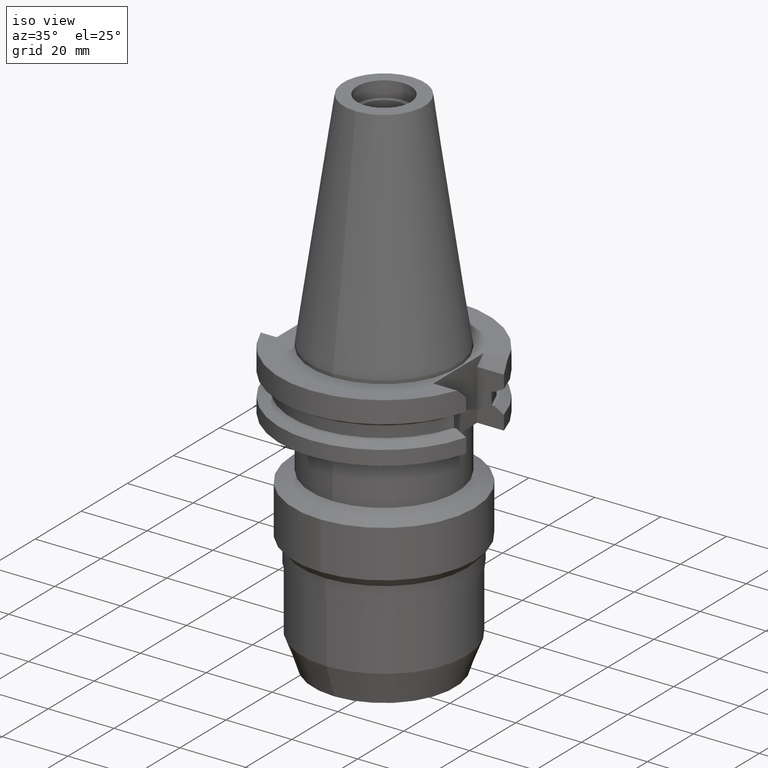
[diagram: clean part render]
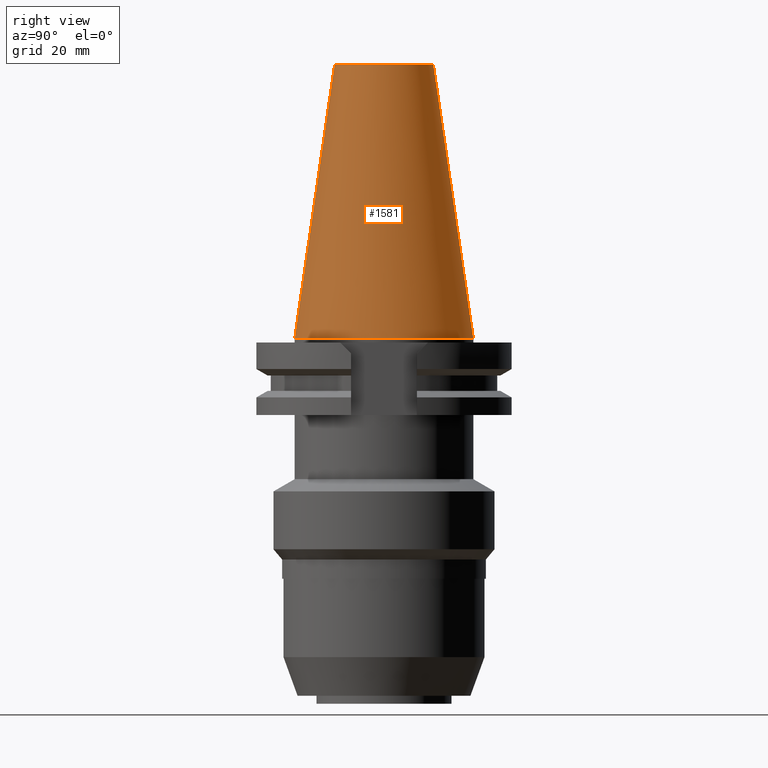
[diagram: tour spotlight — one face highlighted and labeled with its STEP entity id]
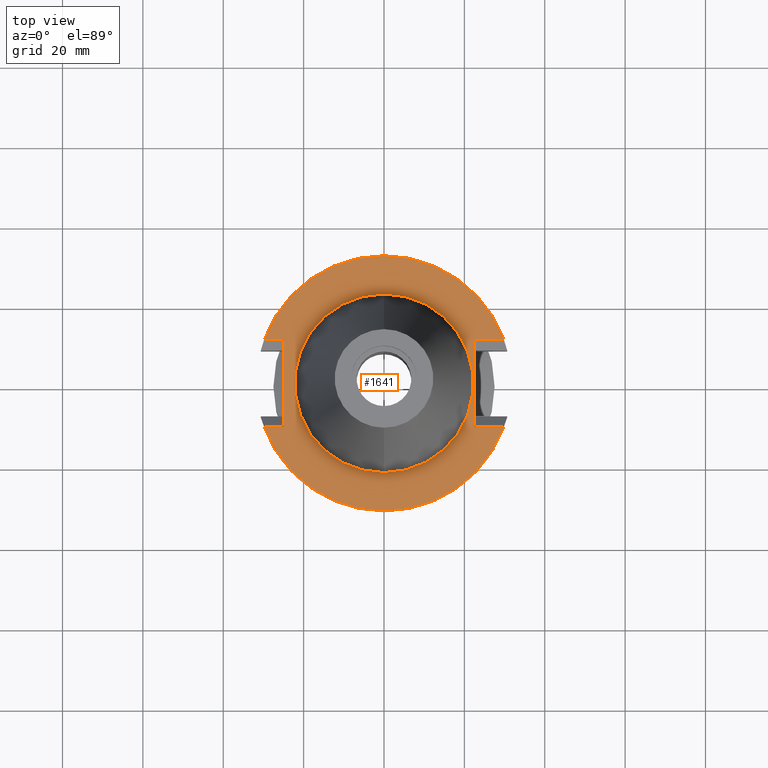
[diagram: tour spotlight — one face highlighted and labeled with its STEP entity id]
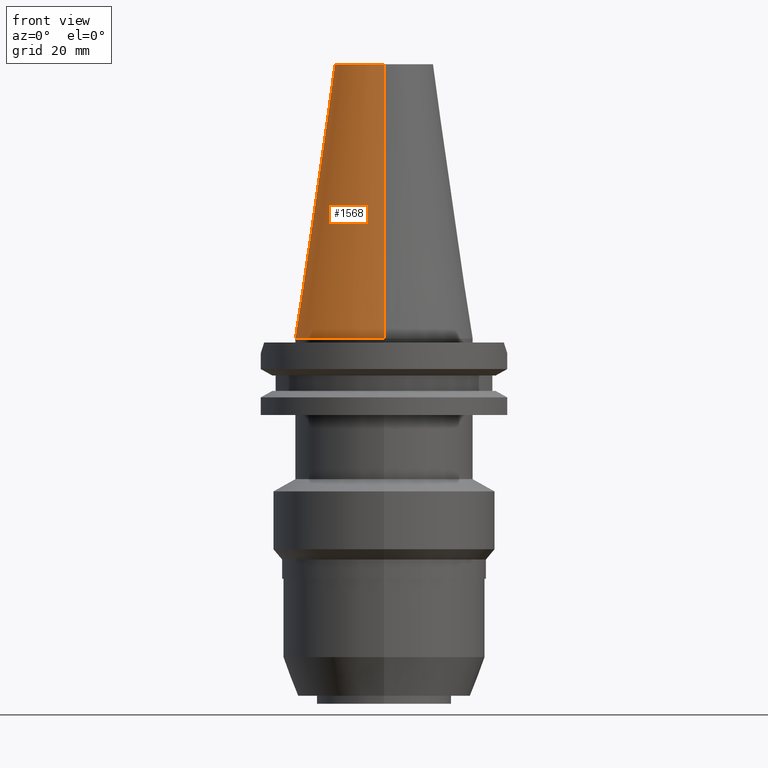
[diagram: tour spotlight — one face highlighted and labeled with its STEP entity id]
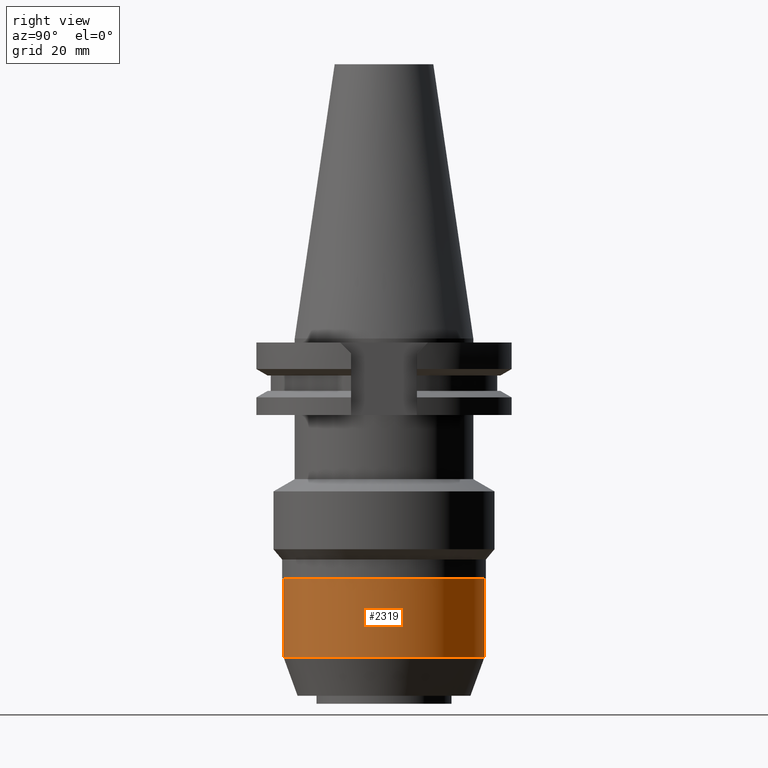
[diagram: tour spotlight — one face highlighted and labeled with its STEP entity id]
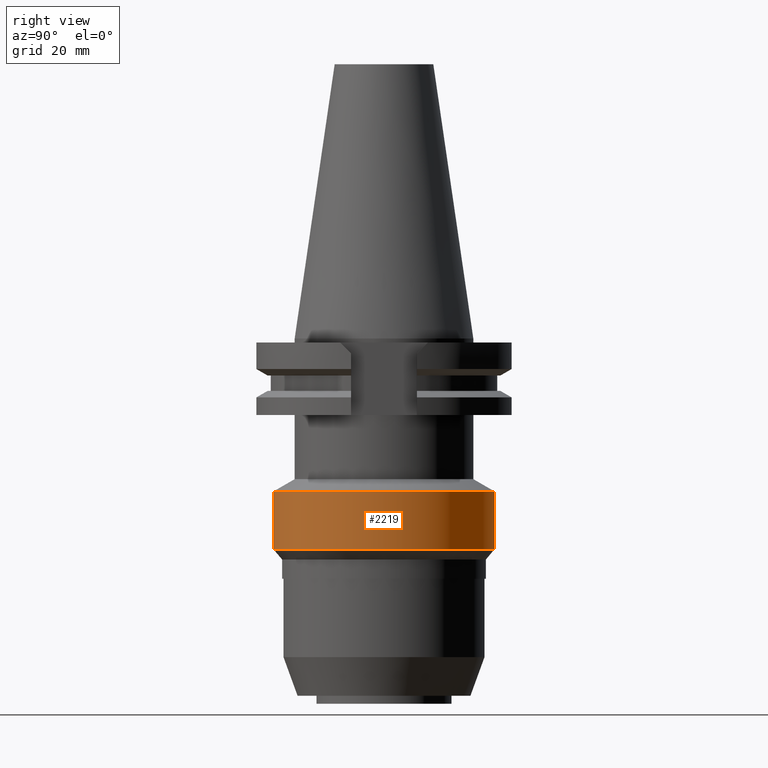
[diagram: tour spotlight — one face highlighted and labeled with its STEP entity id]
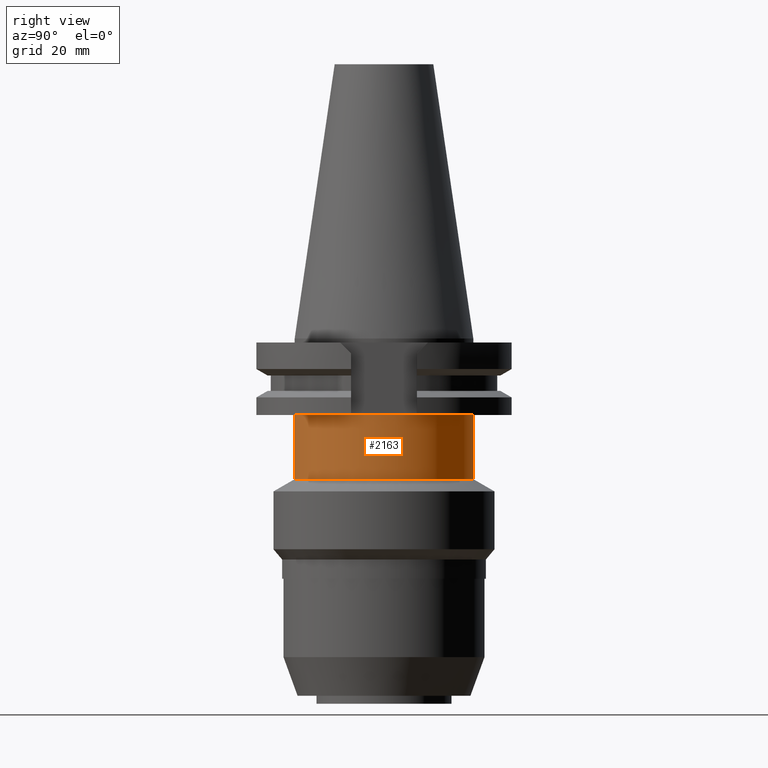
[diagram: tour spotlight — one face highlighted and labeled with its STEP entity id]
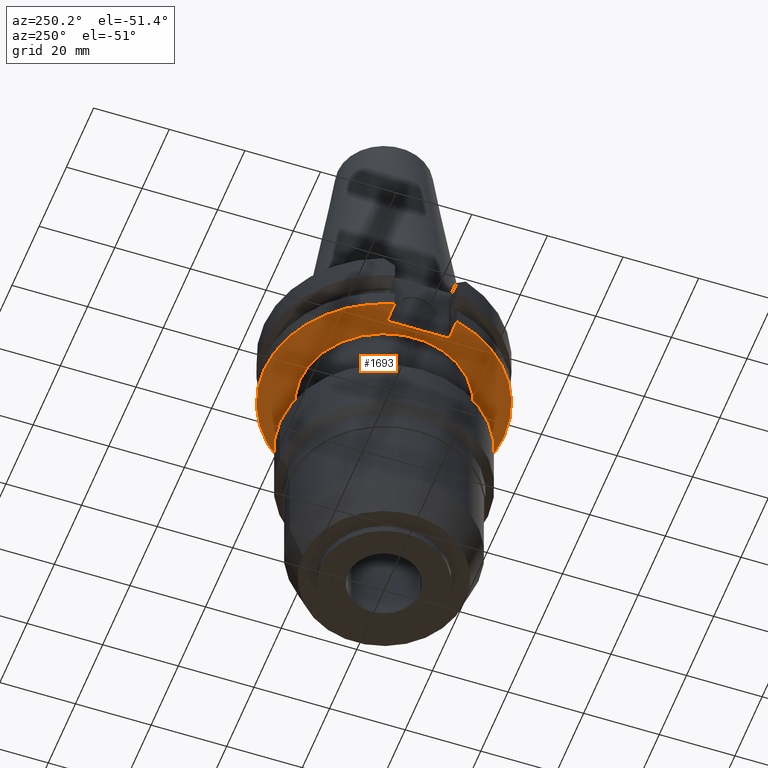
[diagram: tour spotlight — one face highlighted and labeled with its STEP entity id]
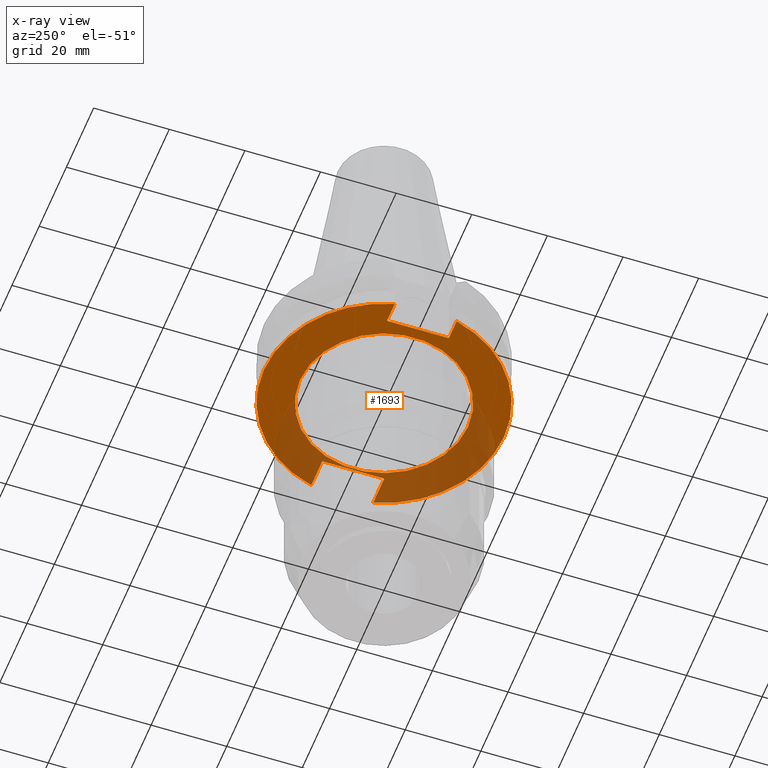
[diagram: x-ray of the same camera — body ghosted, this tour face saturated]
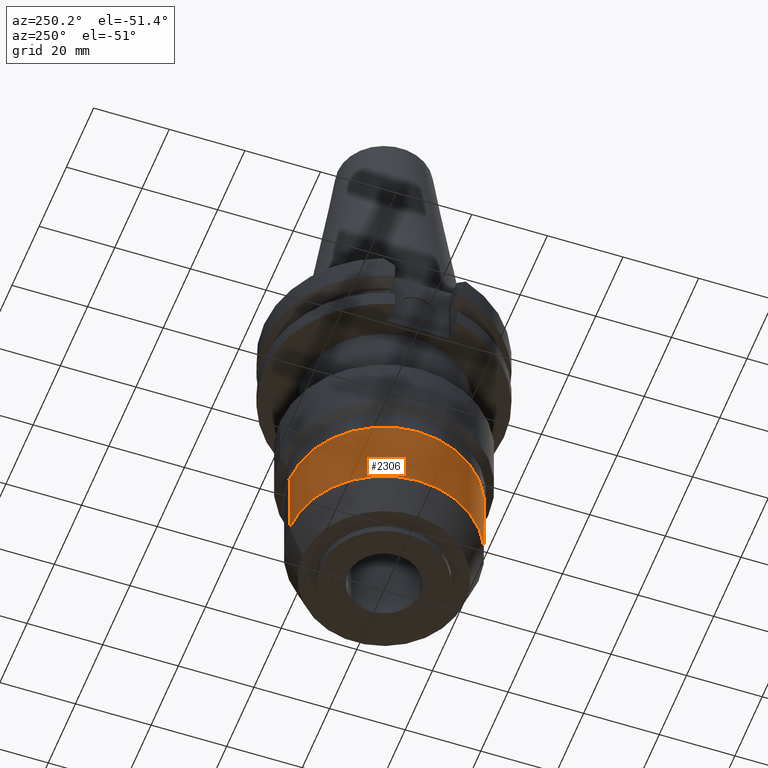
[diagram: tour spotlight — one face highlighted and labeled with its STEP entity id]
A machine part: a face-by-face anatomy tour. The part has 66 B-rep faces; the first image is the clean iso view, then the 8 largest visible faces are spotlighted one at a time (largest first), each with its STEP entity span.

Face 1 — right view, entity #1581. In plain terms, the highlighted conical surface has half-angle 8.297 deg.
Definition (entity closure, byte-faithful):
#26=CARTESIAN_POINT('',(0.E0,1.642557519356E-14,6.825E1));
#27=DIRECTION('',(0.E0,0.E0,-1.E0));
#28=DIRECTION('',(0.E0,1.E0,0.E0));
#29=AXIS2_PLACEMENT_3D('',#26,#27,#28);
#50=DIRECTION('',(0.E0,-1.443069799457E-1,-9.895329683942E-1));
#51=VECTOR('',#50,6.897193138573E1);
#52=CARTESIAN_POINT('',(0.E0,-1.227186888070E1,6.825E1));
#53=LINE('',#52,#51);
#65=DIRECTION('',(0.E0,1.443069799457E-1,-9.895329683942E-1));
#66=VECTOR('',#65,6.897193138573E1);
#67=CARTESIAN_POINT('',(0.E0,1.227186888070E1,6.825E1));
#68=LINE('',#67,#66);
#72=CARTESIAN_POINT('',(0.E0,1.642557519356E-14,-3.126388037344E-13));
#73=DIRECTION('',(0.E0,0.E0,-1.E0));
#74=DIRECTION('',(0.E0,1.E0,0.E0));
#75=AXIS2_PLACEMENT_3D('',#72,#73,#74);
#1318=CARTESIAN_POINT('',(0.E0,-1.227186888070E1,6.825E1));
#1319=CARTESIAN_POINT('',(0.E0,1.227186888070E1,6.825E1));
#1320=VERTEX_POINT('',#1318);
#1321=VERTEX_POINT('',#1319);
#1528=CARTESIAN_POINT('',(0.E0,2.2225E1,-1.705302565824E-13));
#1529=VERTEX_POINT('',#1528);
#1530=CARTESIAN_POINT('',(0.E0,-2.2225E1,-1.705302565824E-13));
#1531=VERTEX_POINT('',#1530);
#1569=CARTESIAN_POINT('',(0.E0,1.642557519356E-14,3.4125E1));
#1570=DIRECTION('',(0.E0,0.E0,-1.E0));
#1571=DIRECTION('',(0.E0,-1.E0,0.E0));
#1572=AXIS2_PLACEMENT_3D('',#1569,#1570,#1571);
#1573=CONICAL_SURFACE('',#1572,1.724843444035E1,8.29715E0);
#1574=ORIENTED_EDGE('',*,*,#1559,.T.);
#1576=ORIENTED_EDGE('',*,*,#1575,.T.);
#1577=ORIENTED_EDGE('',*,*,#1562,.F.);
#1578=ORIENTED_EDGE('',*,*,#1543,.F.);
#1579=EDGE_LOOP('',(#1574,#1576,#1577,#1578));
#1580=FACE_OUTER_BOUND('',#1579,.F.);
#30=CIRCLE('',#29,1.227186888070E1);
#76=CIRCLE('',#75,2.2225E1);
#1543=EDGE_CURVE('',#1321,#1320,#30,.T.);
#1559=EDGE_CURVE('',#1321,#1529,#68,.T.);
#1562=EDGE_CURVE('',#1320,#1531,#53,.T.);
#1575=EDGE_CURVE('',#1529,#1531,#76,.T.);
#1581=ADVANCED_FACE('',(#1580),#1573,.T.);

Face 2 — top view, entity #1641. In plain terms, the highlighted planar face has unit normal (0, 0, -1).
Definition (entity closure, byte-faithful):
#94=DIRECTION('',(0.E0,-1.E0,0.E0));
#95=VECTOR('',#94,2.178E1);
#96=CARTESIAN_POINT('',(2.257E1,1.089E1,-1.E0));
#97=LINE('',#96,#95);
#101=DIRECTION('',(1.E0,5.877118954908E-14,0.E0));
#102=VECTOR('',#101,7.253990343347E0);
#103=CARTESIAN_POINT('',(2.257E1,-1.089E1,-1.E0));
#104=LINE('',#103,#102);
#108=CARTESIAN_POINT('',(0.E0,2.157919508608E-14,-1.E0));
#109=DIRECTION('',(0.E0,0.E0,-1.E0));
#110=DIRECTION('',(9.393382785306E-1,-3.429921259843E-1,0.E0));
#111=AXIS2_PLACEMENT_3D('',#108,#109,#110);
#116=CARTESIAN_POINT('',(0.E0,2.157919508608E-14,-1.E0));
#117=DIRECTION('',(0.E0,0.E0,-1.E0));
#118=DIRECTION('',(0.E0,-1.E0,0.E0));
#119=AXIS2_PLACEMENT_3D('',#116,#117,#118);
#124=DIRECTION('',(-1.E0,-8.727782216946E-14,0.E0));
#125=VECTOR('',#124,4.843990343348E0);
#126=CARTESIAN_POINT('',(-2.498E1,1.089E1,-1.E0));
#127=LINE('',#126,#125);
#131=CARTESIAN_POINT('',(0.E0,2.157919508608E-14,-1.E0));
#132=DIRECTION('',(0.E0,0.E0,-1.E0));
#133=DIRECTION('',(-9.393382785306E-1,3.429921259843E-1,0.E0));
#134=AXIS2_PLACEMENT_3D('',#131,#132,#133);
#139=CARTESIAN_POINT('',(0.E0,2.157919508608E-14,-1.E0));
#140=DIRECTION('',(0.E0,0.E0,-1.E0));
#141=DIRECTION('',(0.E0,1.E0,0.E0));
#142=AXIS2_PLACEMENT_3D('',#139,#140,#141);
#147=CARTESIAN_POINT('',(0.E0,2.157919508608E-14,-1.E0));
#148=DIRECTION('',(0.E0,0.E0,1.E0));
#149=DIRECTION('',(0.E0,-1.E0,0.E0));
#150=AXIS2_PLACEMENT_3D('',#147,#148,#149);
#155=CARTESIAN_POINT('',(0.E0,2.157919508608E-14,-1.E0));
#156=DIRECTION('',(0.E0,0.E0,1.E0));
#157=DIRECTION('',(0.E0,1.E0,0.E0));
#158=AXIS2_PLACEMENT_3D('',#155,#156,#157);
#291=DIRECTION('',(1.E0,-5.779166972326E-14,0.E0));
#292=VECTOR('',#291,7.253990343348E0);
#293=CARTESIAN_POINT('',(2.257E1,1.089E1,-1.E0));
#294=LINE('',#293,#292);
#308=CARTESIAN_POINT('',(2.982399034335E1,1.089E1,-1.000000000001E0));
#335=DIRECTION('',(0.E0,-1.E0,0.E0));
#336=VECTOR('',#335,2.178E1);
#337=CARTESIAN_POINT('',(-2.498E1,1.089E1,-1.E0));
#338=LINE('',#337,#336);
#561=DIRECTION('',(-1.E0,8.727782216946E-14,0.E0));
#562=VECTOR('',#561,4.843990343348E0);
#563=CARTESIAN_POINT('',(-2.498E1,-1.089E1,-1.E0));
#564=LINE('',#563,#562);
#575=CARTESIAN_POINT('',(2.982399034335E1,-1.089E1,-1.000000000001E0));
#600=CARTESIAN_POINT('',(-2.982399034335E1,-1.089E1,-1.000000000001E0));
#1424=CARTESIAN_POINT('',(2.257E1,-1.089E1,-1.E0));
#1425=VERTEX_POINT('',#1424);
#1426=CARTESIAN_POINT('',(2.257E1,1.089E1,-1.E0));
#1427=VERTEX_POINT('',#1426);
#1467=CARTESIAN_POINT('',(-2.498E1,1.089E1,-1.E0));
#1468=VERTEX_POINT('',#1467);
#1469=CARTESIAN_POINT('',(-2.498E1,-1.089E1,-1.E0));
#1470=VERTEX_POINT('',#1469);
#1513=VERTEX_POINT('',#575);
#1514=VERTEX_POINT('',#600);
#1515=CARTESIAN_POINT('',(0.E0,-3.175E1,-1.E0));
#1516=VERTEX_POINT('',#1515);
#1519=VERTEX_POINT('',#308);
#1520=CARTESIAN_POINT('',(0.E0,3.175E1,-1.E0));
#1521=VERTEX_POINT('',#1520);
#1522=CARTESIAN_POINT('',(-2.982399034335E1,1.089E1,-1.E0));
#1523=VERTEX_POINT('',#1522);
#1524=CARTESIAN_POINT('',(0.E0,-2.2225E1,-1.E0));
#1525=CARTESIAN_POINT('',(0.E0,2.2225E1,-1.E0));
#1526=VERTEX_POINT('',#1524);
#1527=VERTEX_POINT('',#1525);
#1610=CARTESIAN_POINT('',(0.E0,1.212400331156E-14,-1.E0));
#1611=DIRECTION('',(0.E0,0.E0,-1.E0));
#1612=DIRECTION('',(0.E0,-1.E0,0.E0));
#1613=AXIS2_PLACEMENT_3D('',#1610,#1611,#1612);
#1614=PLANE('',#1613);
#1616=ORIENTED_EDGE('',*,*,#1615,.T.);
#1618=ORIENTED_EDGE('',*,*,#1617,.T.);
#1620=ORIENTED_EDGE('',*,*,#1619,.T.);
#1622=ORIENTED_EDGE('',*,*,#1621,.T.);
#1624=ORIENTED_EDGE('',*,*,#1623,.F.);
#1626=ORIENTED_EDGE('',*,*,#1625,.F.);
#1628=ORIENTED_EDGE('',*,*,#1627,.T.);
#1630=ORIENTED_EDGE('',*,*,#1629,.T.);
#1632=ORIENTED_EDGE('',*,*,#1631,.T.);
#1634=ORIENTED_EDGE('',*,*,#1633,.F.);
#1635=EDGE_LOOP('',(#1616,#1618,#1620,#1622,#1624,#1626,#1628,#1630,#1632,
#1634));
#1636=FACE_OUTER_BOUND('',#1635,.F.);
#1637=ORIENTED_EDGE('',*,*,#1589,.T.);
#1638=ORIENTED_EDGE('',*,*,#1605,.T.);
#1639=EDGE_LOOP('',(#1637,#1638));
#1640=FACE_BOUND('',#1639,.F.);
#112=CIRCLE('',#111,3.175E1);
#120=CIRCLE('',#119,3.175E1);
#135=CIRCLE('',#134,3.175E1);
#143=CIRCLE('',#142,3.175E1);
#151=CIRCLE('',#150,2.2225E1);
#159=CIRCLE('',#158,2.2225E1);
#1589=EDGE_CURVE('',#1526,#1527,#151,.T.);
#1605=EDGE_CURVE('',#1527,#1526,#159,.T.);
#1615=EDGE_CURVE('',#1427,#1425,#97,.T.);
#1617=EDGE_CURVE('',#1425,#1513,#104,.T.);
#1619=EDGE_CURVE('',#1513,#1516,#112,.T.);
#1621=EDGE_CURVE('',#1516,#1514,#120,.T.);
#1623=EDGE_CURVE('',#1470,#1514,#564,.T.);
#1625=EDGE_CURVE('',#1468,#1470,#338,.T.);
#1627=EDGE_CURVE('',#1468,#1523,#127,.T.);
#1629=EDGE_CURVE('',#1523,#1521,#135,.T.);
#1631=EDGE_CURVE('',#1521,#1519,#143,.T.);
#1633=EDGE_CURVE('',#1427,#1519,#294,.T.);
#1641=ADVANCED_FACE('',(#1636,#1640),#1614,.F.);

Face 3 — front view, entity #1568. In plain terms, the highlighted conical surface has half-angle 8.297 deg.
Definition (entity closure, byte-faithful):
#17=CARTESIAN_POINT('',(0.E0,1.642557519356E-14,6.825E1));
#18=DIRECTION('',(0.E0,0.E0,-1.E0));
#19=DIRECTION('',(0.E0,-1.E0,0.E0));
#20=AXIS2_PLACEMENT_3D('',#17,#18,#19);
#50=DIRECTION('',(0.E0,-1.443069799457E-1,-9.895329683942E-1));
#51=VECTOR('',#50,6.897193138573E1);
#52=CARTESIAN_POINT('',(0.E0,-1.227186888070E1,6.825E1));
#53=LINE('',#52,#51);
#57=CARTESIAN_POINT('',(0.E0,1.642557519356E-14,-3.126388037344E-13));
#58=DIRECTION('',(0.E0,0.E0,-1.E0));
#59=DIRECTION('',(0.E0,-1.E0,0.E0));
#60=AXIS2_PLACEMENT_3D('',#57,#58,#59);
#65=DIRECTION('',(0.E0,1.443069799457E-1,-9.895329683942E-1));
#66=VECTOR('',#65,6.897193138573E1);
#67=CARTESIAN_POINT('',(0.E0,1.227186888070E1,6.825E1));
#68=LINE('',#67,#66);
#1318=CARTESIAN_POINT('',(0.E0,-1.227186888070E1,6.825E1));
#1319=CARTESIAN_POINT('',(0.E0,1.227186888070E1,6.825E1));
#1320=VERTEX_POINT('',#1318);
#1321=VERTEX_POINT('',#1319);
#1528=CARTESIAN_POINT('',(0.E0,2.2225E1,-1.705302565824E-13));
#1529=VERTEX_POINT('',#1528);
#1530=CARTESIAN_POINT('',(0.E0,-2.2225E1,-1.705302565824E-13));
#1531=VERTEX_POINT('',#1530);
#1554=CARTESIAN_POINT('',(0.E0,1.642557519356E-14,3.4125E1));
#1555=DIRECTION('',(0.E0,0.E0,-1.E0));
#1556=DIRECTION('',(0.E0,-1.E0,0.E0));
#1557=AXIS2_PLACEMENT_3D('',#1554,#1555,#1556);
#1558=CONICAL_SURFACE('',#1557,1.724843444035E1,8.29715E0);
#1560=ORIENTED_EDGE('',*,*,#1559,.F.);
#1561=ORIENTED_EDGE('',*,*,#1541,.F.);
#1563=ORIENTED_EDGE('',*,*,#1562,.T.);
#1565=ORIENTED_EDGE('',*,*,#1564,.T.);
#1566=EDGE_LOOP('',(#1560,#1561,#1563,#1565));
#1567=FACE_OUTER_BOUND('',#1566,.F.);
#21=CIRCLE('',#20,1.227186888070E1);
#61=CIRCLE('',#60,2.2225E1);
#1541=EDGE_CURVE('',#1320,#1321,#21,.T.);
#1559=EDGE_CURVE('',#1321,#1529,#68,.T.);
#1562=EDGE_CURVE('',#1320,#1531,#53,.T.);
#1564=EDGE_CURVE('',#1531,#1529,#61,.T.);
#1568=ADVANCED_FACE('',(#1567),#1558,.T.);

Face 4 — right view, entity #2319. In plain terms, the highlighted cylindrical surface (partial cylindrical patch) has radius 25 mm, axis along (0, 0, -1).
Definition (entity closure, byte-faithful):
#1006=CARTESIAN_POINT('',(0.E0,2.157919508608E-14,-5.98E1));
#1007=DIRECTION('',(0.E0,0.E0,-1.E0));
#1008=DIRECTION('',(0.E0,1.E0,0.E0));
#1009=AXIS2_PLACEMENT_3D('',#1006,#1007,#1008);
#1014=DIRECTION('',(0.E0,5.010237239334E-14,-1.E0));
#1015=VECTOR('',#1014,1.95E1);
#1016=CARTESIAN_POINT('',(0.E0,-2.5E1,-5.98E1));
#1017=LINE('',#1016,#1015);
#1021=DIRECTION('',(0.E0,-5.046675328347E-14,-1.E0));
#1022=VECTOR('',#1021,1.95E1);
#1023=CARTESIAN_POINT('',(0.E0,2.5E1,-5.98E1));
#1024=LINE('',#1023,#1022);
#1035=CARTESIAN_POINT('',(0.E0,0.E0,-7.93E1));
#1036=DIRECTION('',(0.E0,0.E0,1.E0));
#1037=DIRECTION('',(0.E0,-1.E0,0.E0));
#1038=AXIS2_PLACEMENT_3D('',#1035,#1036,#1037);
#1370=CARTESIAN_POINT('',(0.E0,2.5E1,-7.93E1));
#1371=VERTEX_POINT('',#1370);
#1372=CARTESIAN_POINT('',(0.E0,-2.5E1,-7.93E1));
#1373=VERTEX_POINT('',#1372);
#1374=CARTESIAN_POINT('',(0.E0,2.5E1,-5.98E1));
#1375=VERTEX_POINT('',#1374);
#1376=CARTESIAN_POINT('',(0.E0,-2.5E1,-5.98E1));
#1377=VERTEX_POINT('',#1376);
#2307=CARTESIAN_POINT('',(0.E0,2.157919508608E-14,7.62075E1));
#2308=DIRECTION('',(0.E0,0.E0,-1.E0));
#2309=DIRECTION('',(0.E0,-1.E0,0.E0));
#2310=AXIS2_PLACEMENT_3D('',#2307,#2308,#2309);
#2311=CYLINDRICAL_SURFACE('',#2310,2.5E1);
#2312=ORIENTED_EDGE('',*,*,#2297,.T.);
#2314=ORIENTED_EDGE('',*,*,#2313,.F.);
#2315=ORIENTED_EDGE('',*,*,#2300,.F.);
#2316=ORIENTED_EDGE('',*,*,#2287,.F.);
#2317=EDGE_LOOP('',(#2312,#2314,#2315,#2316));
#2318=FACE_OUTER_BOUND('',#2317,.F.);
#1010=CIRCLE('',#1009,2.5E1);
#1039=CIRCLE('',#1038,2.5E1);
#2287=EDGE_CURVE('',#1375,#1377,#1010,.T.);
#2297=EDGE_CURVE('',#1375,#1371,#1024,.T.);
#2300=EDGE_CURVE('',#1377,#1373,#1017,.T.);
#2313=EDGE_CURVE('',#1373,#1371,#1039,.T.);
#2319=ADVANCED_FACE('',(#2318),#2311,.T.);

Face 5 — right view, entity #2219. In plain terms, the highlighted cylindrical surface (partial cylindrical patch) has radius 27.5 mm, axis along (0, 0, -1).
Definition (entity closure, byte-faithful):
#869=CARTESIAN_POINT('',(0.E0,0.E0,-3.804552266998E1));
#870=DIRECTION('',(0.E0,0.E0,-1.E0));
#871=DIRECTION('',(0.E0,1.E0,0.E0));
#872=AXIS2_PLACEMENT_3D('',#869,#870,#871);
#908=DIRECTION('',(0.E0,1.481098897194E-14,-1.E0));
#909=VECTOR('',#908,1.439220710594E1);
#910=CARTESIAN_POINT('',(0.E0,-2.75E1,-3.804552266998E1));
#911=LINE('',#910,#909);
#915=DIRECTION('',(0.E0,-1.456413915575E-14,-1.E0));
#916=VECTOR('',#915,1.439220710594E1);
#917=CARTESIAN_POINT('',(0.E0,2.75E1,-3.804552266998E1));
#918=LINE('',#917,#916);
#937=CARTESIAN_POINT('',(0.E0,0.E0,-5.243772977592E1));
#938=DIRECTION('',(0.E0,0.E0,1.E0));
#939=DIRECTION('',(0.E0,-1.E0,0.E0));
#940=AXIS2_PLACEMENT_3D('',#937,#938,#939);
#1386=CARTESIAN_POINT('',(0.E0,2.75E1,-5.243772977592E1));
#1387=VERTEX_POINT('',#1386);
#1388=CARTESIAN_POINT('',(0.E0,-2.75E1,-5.243772977592E1));
#1389=VERTEX_POINT('',#1388);
#1390=CARTESIAN_POINT('',(0.E0,2.75E1,-3.804552266998E1));
#1391=VERTEX_POINT('',#1390);
#1392=CARTESIAN_POINT('',(0.E0,-2.75E1,-3.804552266998E1));
#1393=VERTEX_POINT('',#1392);
#2207=CARTESIAN_POINT('',(0.E0,2.157919508608E-14,7.62075E1));
#2208=DIRECTION('',(0.E0,0.E0,-1.E0));
#2209=DIRECTION('',(0.E0,-1.E0,0.E0));
#2210=AXIS2_PLACEMENT_3D('',#2207,#2208,#2209);
#2211=CYLINDRICAL_SURFACE('',#2210,2.75E1);
#2212=ORIENTED_EDGE('',*,*,#2197,.T.);
#2214=ORIENTED_EDGE('',*,*,#2213,.F.);
#2215=ORIENTED_EDGE('',*,*,#2200,.F.);
#2216=ORIENTED_EDGE('',*,*,#2171,.F.);
#2217=EDGE_LOOP('',(#2212,#2214,#2215,#2216));
#2218=FACE_OUTER_BOUND('',#2217,.F.);
#873=CIRCLE('',#872,2.75E1);
#941=CIRCLE('',#940,2.75E1);
#2171=EDGE_CURVE('',#1391,#1393,#873,.T.);
#2197=EDGE_CURVE('',#1391,#1387,#918,.T.);
#2200=EDGE_CURVE('',#1393,#1389,#911,.T.);
#2213=EDGE_CURVE('',#1389,#1387,#941,.T.);
#2219=ADVANCED_FACE('',(#2218),#2211,.T.);

Face 6 — right view, entity #2163. In plain terms, the highlighted cylindrical surface (partial cylindrical patch) has radius 22.225 mm, axis along (0, 0, -1).
Definition (entity closure, byte-faithful):
#259=CARTESIAN_POINT('',(0.E0,2.157919508608E-14,-1.905E1));
#260=DIRECTION('',(0.E0,0.E0,-1.E0));
#261=DIRECTION('',(0.E0,1.E0,0.E0));
#262=AXIS2_PLACEMENT_3D('',#259,#260,#261);
#848=DIRECTION('',(0.E0,3.140643440193E-14,-1.E0));
#849=VECTOR('',#848,1.595E1);
#850=CARTESIAN_POINT('',(0.E0,-2.2225E1,-1.905E1));
#851=LINE('',#850,#849);
#855=DIRECTION('',(0.E0,-3.162917507145E-14,-1.E0));
#856=VECTOR('',#855,1.595E1);
#857=CARTESIAN_POINT('',(0.E0,2.2225E1,-1.905E1));
#858=LINE('',#857,#856);
#877=CARTESIAN_POINT('',(0.E0,0.E0,-3.5E1));
#878=DIRECTION('',(0.E0,0.E0,1.E0));
#879=DIRECTION('',(0.E0,-1.E0,0.E0));
#880=AXIS2_PLACEMENT_3D('',#877,#878,#879);
#1394=CARTESIAN_POINT('',(0.E0,2.2225E1,-3.5E1));
#1395=VERTEX_POINT('',#1394);
#1396=CARTESIAN_POINT('',(0.E0,-2.2225E1,-3.5E1));
#1397=VERTEX_POINT('',#1396);
#1398=CARTESIAN_POINT('',(0.E0,2.2225E1,-1.905E1));
#1399=VERTEX_POINT('',#1398);
#1400=CARTESIAN_POINT('',(0.E0,-2.2225E1,-1.905E1));
#1401=VERTEX_POINT('',#1400);
#2151=CARTESIAN_POINT('',(0.E0,2.157919508608E-14,7.62075E1));
#2152=DIRECTION('',(0.E0,0.E0,-1.E0));
#2153=DIRECTION('',(0.E0,-1.E0,0.E0));
#2154=AXIS2_PLACEMENT_3D('',#2151,#2152,#2153);
#2155=CYLINDRICAL_SURFACE('',#2154,2.2225E1);
#2156=ORIENTED_EDGE('',*,*,#2141,.T.);
#2158=ORIENTED_EDGE('',*,*,#2157,.F.);
#2159=ORIENTED_EDGE('',*,*,#2144,.F.);
#2160=ORIENTED_EDGE('',*,*,#1689,.F.);
#2161=EDGE_LOOP('',(#2156,#2158,#2159,#2160));
#2162=FACE_OUTER_BOUND('',#2161,.F.);
#263=CIRCLE('',#262,2.2225E1);
#881=CIRCLE('',#880,2.2225E1);
#1689=EDGE_CURVE('',#1399,#1401,#263,.T.);
#2141=EDGE_CURVE('',#1399,#1395,#858,.T.);
#2144=EDGE_CURVE('',#1401,#1397,#851,.T.);
#2157=EDGE_CURVE('',#1397,#1395,#881,.T.);
#2163=ADVANCED_FACE('',(#2162),#2155,.T.);

Face 7 — auxiliary view, entity #1693. An x-ray twin of the same camera follows (body ghosted, this face saturated) — the face is partly hidden behind the body. In plain terms, the highlighted planar face has unit normal (0, 0, -1).
Definition (entity closure, byte-faithful):
#163=DIRECTION('',(0.E0,-1.E0,0.E0));
#164=VECTOR('',#163,1.638E1);
#165=CARTESIAN_POINT('',(2.257E1,8.19E0,-1.905E1));
#166=LINE('',#165,#164);
#198=DIRECTION('',(1.E0,0.E0,0.E0));
#199=VECTOR('',#198,8.105501625890E0);
#200=CARTESIAN_POINT('',(2.257E1,8.19E0,-1.905E1));
#201=LINE('',#200,#199);
#205=CARTESIAN_POINT('',(0.E0,2.157919508608E-14,-1.905E1));
#206=DIRECTION('',(0.E0,0.E0,1.E0));
#207=DIRECTION('',(9.661575315241E-1,2.579527559055E-1,0.E0));
#208=AXIS2_PLACEMENT_3D('',#205,#206,#207);
#213=CARTESIAN_POINT('',(0.E0,2.157919508608E-14,-1.905E1));
#214=DIRECTION('',(0.E0,0.E0,1.E0));
#215=DIRECTION('',(0.E0,1.E0,0.E0));
#216=AXIS2_PLACEMENT_3D('',#213,#214,#215);
#221=DIRECTION('',(0.E0,-1.E0,0.E0));
#222=VECTOR('',#221,1.638E1);
#223=CARTESIAN_POINT('',(-2.498E1,8.19E0,-1.905E1));
#224=LINE('',#223,#222);
#228=DIRECTION('',(-1.E0,0.E0,0.E0));
#229=VECTOR('',#228,5.695501625890E0);
#230=CARTESIAN_POINT('',(-2.498E1,-8.19E0,-1.905E1));
#231=LINE('',#230,#229);
#235=CARTESIAN_POINT('',(0.E0,2.157919508608E-14,-1.905E1));
#236=DIRECTION('',(0.E0,0.E0,1.E0));
#237=DIRECTION('',(-9.661575315241E-1,-2.579527559055E-1,0.E0));
#238=AXIS2_PLACEMENT_3D('',#235,#236,#237);
#243=CARTESIAN_POINT('',(0.E0,2.157919508608E-14,-1.905E1));
#244=DIRECTION('',(0.E0,0.E0,1.E0));
#245=DIRECTION('',(0.E0,-1.E0,0.E0));
#246=AXIS2_PLACEMENT_3D('',#243,#244,#245);
#251=CARTESIAN_POINT('',(0.E0,2.157919508608E-14,-1.905E1));
#252=DIRECTION('',(0.E0,0.E0,-1.E0));
#253=DIRECTION('',(0.E0,-1.E0,0.E0));
#254=AXIS2_PLACEMENT_3D('',#251,#252,#253);
#259=CARTESIAN_POINT('',(0.E0,2.157919508608E-14,-1.905E1));
#260=DIRECTION('',(0.E0,0.E0,-1.E0));
#261=DIRECTION('',(0.E0,1.E0,0.E0));
#262=AXIS2_PLACEMENT_3D('',#259,#260,#261);
#365=DIRECTION('',(-1.E0,0.E0,0.E0));
#366=VECTOR('',#365,5.695501625890E0);
#367=CARTESIAN_POINT('',(-2.498E1,8.19E0,-1.905E1));
#368=LINE('',#367,#366);
#605=DIRECTION('',(1.E0,0.E0,0.E0));
#606=VECTOR('',#605,8.105501625890E0);
#607=CARTESIAN_POINT('',(2.257E1,-8.19E0,-1.905E1));
#608=LINE('',#607,#606);
#1398=CARTESIAN_POINT('',(0.E0,2.2225E1,-1.905E1));
#1399=VERTEX_POINT('',#1398);
#1400=CARTESIAN_POINT('',(0.E0,-2.2225E1,-1.905E1));
#1401=VERTEX_POINT('',#1400);
#1402=CARTESIAN_POINT('',(2.257E1,8.19E0,-1.905E1));
#1403=CARTESIAN_POINT('',(2.257E1,-8.19E0,-1.905E1));
#1404=VERTEX_POINT('',#1402);
#1405=VERTEX_POINT('',#1403);
#1406=CARTESIAN_POINT('',(3.067550162589E1,8.19E0,-1.905E1));
#1407=VERTEX_POINT('',#1406);
#1408=CARTESIAN_POINT('',(-1.540277123354E-14,3.175E1,-1.905E1));
#1409=CARTESIAN_POINT('',(-3.067550162589E1,8.19E0,-1.905E1));
#1410=VERTEX_POINT('',#1408);
#1411=VERTEX_POINT('',#1409);
#1412=CARTESIAN_POINT('',(-2.498E1,8.19E0,-1.905E1));
#1413=VERTEX_POINT('',#1412);
#1414=CARTESIAN_POINT('',(-2.498E1,-8.19E0,-1.905E1));
#1415=VERTEX_POINT('',#1414);
#1416=CARTESIAN_POINT('',(-3.067550162589E1,-8.19E0,-1.905E1));
#1417=VERTEX_POINT('',#1416);
#1418=CARTESIAN_POINT('',(1.540277123354E-14,-3.175E1,-1.905E1));
#1419=CARTESIAN_POINT('',(3.067550162589E1,-8.19E0,-1.905E1));
#1420=VERTEX_POINT('',#1418);
#1421=VERTEX_POINT('',#1419);
#1661=CARTESIAN_POINT('',(0.E0,0.E0,-1.905E1));
#1662=DIRECTION('',(0.E0,0.E0,-1.E0));
#1663=DIRECTION('',(0.E0,-1.E0,0.E0));
#1664=AXIS2_PLACEMENT_3D('',#1661,#1662,#1663);
#1665=PLANE('',#1664);
#1666=ORIENTED_EDGE('',*,*,#1647,.F.);
#1668=ORIENTED_EDGE('',*,*,#1667,.T.);
#1670=ORIENTED_EDGE('',*,*,#1669,.T.);
#1672=ORIENTED_EDGE('',*,*,#1671,.T.);
#1674=ORIENTED_EDGE('',*,*,#1673,.F.);
#1676=ORIENTED_EDGE('',*,*,#1675,.T.);
#1678=ORIENTED_EDGE('',*,*,#1677,.T.);
#1680=ORIENTED_EDGE('',*,*,#1679,.T.);
#1682=ORIENTED_EDGE('',*,*,#1681,.T.);
#1684=ORIENTED_EDGE('',*,*,#1683,.F.);
#1685=EDGE_LOOP('',(#1666,#1668,#1670,#1672,#1674,#1676,#1678,#1680,#1682,
#1684));
#1686=FACE_OUTER_BOUND('',#1685,.F.);
#1688=ORIENTED_EDGE('',*,*,#1687,.T.);
#1690=ORIENTED_EDGE('',*,*,#1689,.T.);
#1691=EDGE_LOOP('',(#1688,#1690));
#1692=FACE_BOUND('',#1691,.F.);
#209=CIRCLE('',#208,3.175E1);
#217=CIRCLE('',#216,3.175E1);
#239=CIRCLE('',#238,3.175E1);
#247=CIRCLE('',#246,3.175E1);
#255=CIRCLE('',#254,2.2225E1);
#263=CIRCLE('',#262,2.2225E1);
#1647=EDGE_CURVE('',#1404,#1405,#166,.T.);
#1667=EDGE_CURVE('',#1404,#1407,#201,.T.);
#1669=EDGE_CURVE('',#1407,#1410,#209,.T.);
#1671=EDGE_CURVE('',#1410,#1411,#217,.T.);
#1673=EDGE_CURVE('',#1413,#1411,#368,.T.);
#1675=EDGE_CURVE('',#1413,#1415,#224,.T.);
#1677=EDGE_CURVE('',#1415,#1417,#231,.T.);
#1679=EDGE_CURVE('',#1417,#1420,#239,.T.);
#1681=EDGE_CURVE('',#1420,#1421,#247,.T.);
#1683=EDGE_CURVE('',#1405,#1421,#608,.T.);
#1687=EDGE_CURVE('',#1401,#1399,#255,.T.);
#1689=EDGE_CURVE('',#1399,#1401,#263,.T.);
#1693=ADVANCED_FACE('',(#1686,#1692),#1665,.T.);

Face 8 — auxiliary view, entity #2306. In plain terms, the highlighted cylindrical surface (partial cylindrical patch) has radius 25 mm, axis along (0, 0, -1).
Definition (entity closure, byte-faithful):
#998=CARTESIAN_POINT('',(0.E0,2.157919508608E-14,-5.98E1));
#999=DIRECTION('',(0.E0,0.E0,-1.E0));
#1000=DIRECTION('',(0.E0,-1.E0,0.E0));
#1001=AXIS2_PLACEMENT_3D('',#998,#999,#1000);
#1014=DIRECTION('',(0.E0,5.010237239334E-14,-1.E0));
#1015=VECTOR('',#1014,1.95E1);
#1016=CARTESIAN_POINT('',(0.E0,-2.5E1,-5.98E1));
#1017=LINE('',#1016,#1015);
#1021=DIRECTION('',(0.E0,-5.046675328347E-14,-1.E0));
#1022=VECTOR('',#1021,1.95E1);
#1023=CARTESIAN_POINT('',(0.E0,2.5E1,-5.98E1));
#1024=LINE('',#1023,#1022);
#1043=CARTESIAN_POINT('',(0.E0,0.E0,-7.93E1));
#1044=DIRECTION('',(0.E0,0.E0,1.E0));
#1045=DIRECTION('',(0.E0,1.E0,0.E0));
#1046=AXIS2_PLACEMENT_3D('',#1043,#1044,#1045);
#1370=CARTESIAN_POINT('',(0.E0,2.5E1,-7.93E1));
#1371=VERTEX_POINT('',#1370);
#1372=CARTESIAN_POINT('',(0.E0,-2.5E1,-7.93E1));
#1373=VERTEX_POINT('',#1372);
#1374=CARTESIAN_POINT('',(0.E0,2.5E1,-5.98E1));
#1375=VERTEX_POINT('',#1374);
#1376=CARTESIAN_POINT('',(0.E0,-2.5E1,-5.98E1));
#1377=VERTEX_POINT('',#1376);
#2292=CARTESIAN_POINT('',(0.E0,2.157919508608E-14,7.62075E1));
#2293=DIRECTION('',(0.E0,0.E0,-1.E0));
#2294=DIRECTION('',(0.E0,-1.E0,0.E0));
#2295=AXIS2_PLACEMENT_3D('',#2292,#2293,#2294);
#2296=CYLINDRICAL_SURFACE('',#2295,2.5E1);
#2298=ORIENTED_EDGE('',*,*,#2297,.F.);
#2299=ORIENTED_EDGE('',*,*,#2285,.F.);
#2301=ORIENTED_EDGE('',*,*,#2300,.T.);
#2303=ORIENTED_EDGE('',*,*,#2302,.F.);
#2304=EDGE_LOOP('',(#2298,#2299,#2301,#2303));
#2305=FACE_OUTER_BOUND('',#2304,.F.);
#1002=CIRCLE('',#1001,2.5E1);
#1047=CIRCLE('',#1046,2.5E1);
#2285=EDGE_CURVE('',#1377,#1375,#1002,.T.);
#2297=EDGE_CURVE('',#1375,#1371,#1024,.T.);
#2300=EDGE_CURVE('',#1377,#1373,#1017,.T.);
#2302=EDGE_CURVE('',#1371,#1373,#1047,.T.);
#2306=ADVANCED_FACE('',(#2305),#2296,.T.);